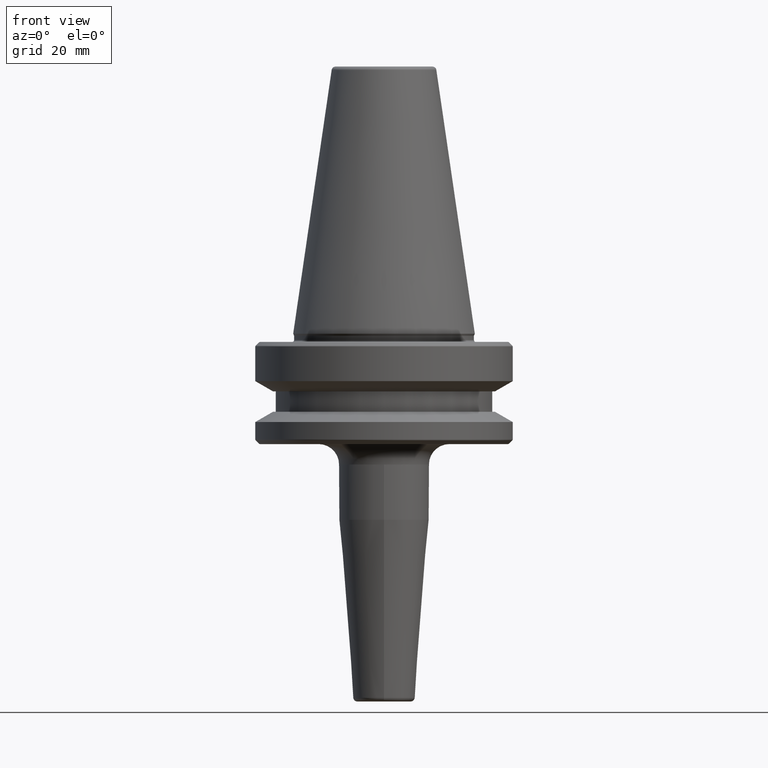
[diagram: clean part render]
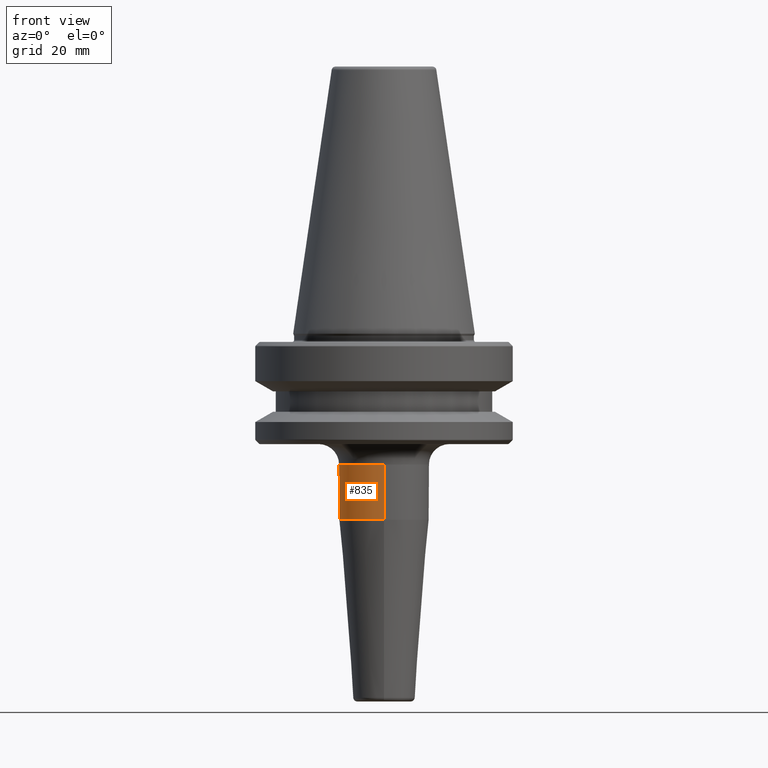
[diagram: same view with one face highlighted and labeled with its STEP entity id]
A machine part, front view. The second image highlights one B-rep face of the part: STEP entity #835.
In plain terms, the highlighted cylindrical surface (partial cylindrical patch) has radius 11 mm, axis along (-0, 0, -1).
Its self-contained STEP definition (entity closure, byte-faithful):
#21 = CIRCLE ( 'NONE', #329, 11.00000000000001200 ) ;
#40 = CARTESIAN_POINT ( 'NONE',  ( 0.0000000000000000000, 11.00000000000001400, -90.00000000000000000 ) ) ;
#75 = LINE ( 'NONE', #40, #832 ) ;
#80 = DIRECTION ( 'NONE',  ( -0.0000000000000000000, 2.332660569804487100E-017, -1.000000000000000000 ) ) ;
#172 = EDGE_CURVE ( 'NONE', #866, #1002, #626, .T. ) ;
#189 = DIRECTION ( 'NONE',  ( -0.0000000000000000000, 2.332660569804487100E-017, -1.000000000000000000 ) ) ;
#248 = AXIS2_PLACEMENT_3D ( 'NONE', #792, #189, #889 ) ;
#323 = DIRECTION ( 'NONE',  ( 0.0000000000000000000, 1.000000000000000000, 0.0000000000000000000 ) ) ;
#329 = AXIS2_PLACEMENT_3D ( 'NONE', #445, #1134, #547 ) ;
#348 = CARTESIAN_POINT ( 'NONE',  ( 0.0000000000000000000, 11.00000000000001200, -32.00000000000000000 ) ) ;
#350 = CARTESIAN_POINT ( 'NONE',  ( 1.347111479062088400E-015, 11.00000000000000000, -45.52828342338443000 ) ) ;
#404 = DIRECTION ( 'NONE',  ( 0.0000000000000000000, 0.0000000000000000000, -1.000000000000000000 ) ) ;
#424 = CARTESIAN_POINT ( 'NONE',  ( 0.0000000000000000000, 1.469576158976826700E-015, -90.00000000000000000 ) ) ;
#426 = ORIENTED_EDGE ( 'NONE', *, *, #1135, .T. ) ;
#445 = CARTESIAN_POINT ( 'NONE',  ( 0.0000000000000000000, 1.166330284902243600E-016, -32.00000000000000000 ) ) ;
#481 = VECTOR ( 'NONE', #80, 1000.000000000000000 ) ;
#526 = ORIENTED_EDGE ( 'NONE', *, *, #655, .T. ) ;
#544 = CARTESIAN_POINT ( 'NONE',  ( 0.0000000000000000000, -11.00000000000000000, -45.52828342338443000 ) ) ;
#547 = DIRECTION ( 'NONE',  ( -1.000000000000000000, 0.0000000000000000000, 0.0000000000000000000 ) ) ;
#560 = EDGE_CURVE ( 'NONE', #1242, #925, #1217, .T. ) ;
#603 = AXIS2_PLACEMENT_3D ( 'NONE', #996, #404, #1095 ) ;
#620 = AXIS2_PLACEMENT_3D ( 'NONE', #424, #733, #323 ) ;
#626 = CIRCLE ( 'NONE', #603, 11.00000000000001200 ) ;
#653 = EDGE_LOOP ( 'NONE', ( #1124, #426, #924, #526, #704 ) ) ;
#655 = EDGE_CURVE ( 'NONE', #1002, #925, #75, .T. ) ;
#704 = ORIENTED_EDGE ( 'NONE', *, *, #560, .F. ) ;
#710 = FACE_OUTER_BOUND ( 'NONE', #653, .T. ) ;
#733 = DIRECTION ( 'NONE',  ( -0.0000000000000000000, 2.332660569804487100E-017, -1.000000000000000000 ) ) ;
#775 = VERTEX_POINT ( 'NONE', #872 ) ;
#792 = CARTESIAN_POINT ( 'NONE',  ( 0.0000000000000000000, 4.322019616789095400E-016, -45.52828342338443000 ) ) ;
#793 = EDGE_CURVE ( 'NONE', #775, #1242, #1234, .T. ) ;
#832 = VECTOR ( 'NONE', #1225, 1000.000000000000000 ) ;
#835 = ADVANCED_FACE ( 'NONE', ( #710 ), #908, .T. ) ;
#866 = VERTEX_POINT ( 'NONE', #945 ) ;
#872 = CARTESIAN_POINT ( 'NONE',  ( 1.347111479062090200E-015, -11.00000000000001200, -32.00000000000000000 ) ) ;
#876 = CARTESIAN_POINT ( 'NONE',  ( 1.347111479062090200E-015, -11.00000000000001100, -90.00000000000000000 ) ) ;
#889 = DIRECTION ( 'NONE',  ( 0.0000000000000000000, 1.000000000000000000, 0.0000000000000000000 ) ) ;
#908 = CYLINDRICAL_SURFACE ( 'NONE', #620, 11.00000000000001200 ) ;
#924 = ORIENTED_EDGE ( 'NONE', *, *, #172, .T. ) ;
#925 = VERTEX_POINT ( 'NONE', #350 ) ;
#945 = CARTESIAN_POINT ( 'NONE',  ( -11.00000000000001200, 1.166330284902243600E-016, -32.00000000000000000 ) ) ;
#996 = CARTESIAN_POINT ( 'NONE',  ( 0.0000000000000000000, 1.166330284902243600E-016, -32.00000000000000000 ) ) ;
#1002 = VERTEX_POINT ( 'NONE', #348 ) ;
#1095 = DIRECTION ( 'NONE',  ( -1.000000000000000000, 0.0000000000000000000, 0.0000000000000000000 ) ) ;
#1124 = ORIENTED_EDGE ( 'NONE', *, *, #793, .F. ) ;
#1134 = DIRECTION ( 'NONE',  ( 0.0000000000000000000, 0.0000000000000000000, -1.000000000000000000 ) ) ;
#1135 = EDGE_CURVE ( 'NONE', #775, #866, #21, .T. ) ;
#1217 = CIRCLE ( 'NONE', #248, 11.00000000000000000 ) ;
#1225 = DIRECTION ( 'NONE',  ( -0.0000000000000000000, 2.332660569804487100E-017, -1.000000000000000000 ) ) ;
#1234 = LINE ( 'NONE', #876, #481 ) ;
#1242 = VERTEX_POINT ( 'NONE', #544 ) ;